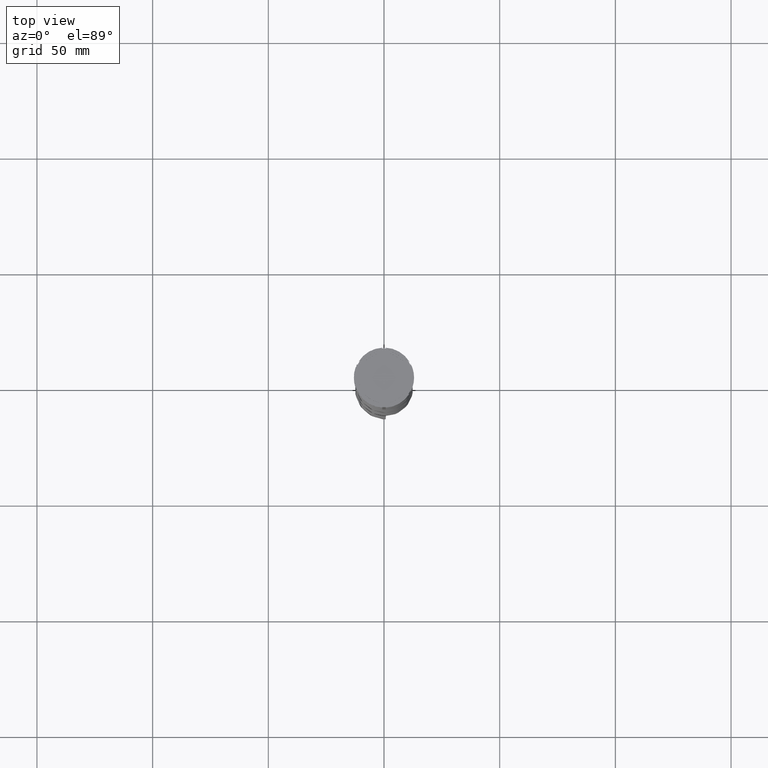
[diagram: clean part render]
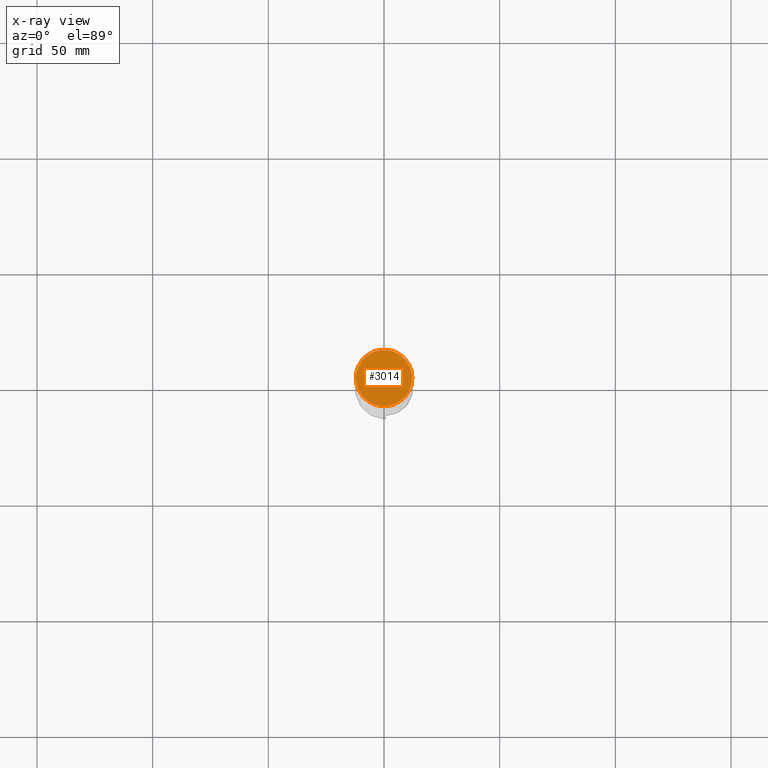
[diagram: x-ray — body ghosted, one internal face saturated and labeled with its STEP entity id]
A machine part, top view, then the same camera in x-ray: the body is ghosted and one INTERNAL B-rep face — a face not visible from any outside direction — is saturated and labeled: STEP entity #3014.
In plain terms, the highlighted planar face has unit normal (0, 0, -1).
Its self-contained STEP definition (entity closure, byte-faithful):
#205 = DIRECTION ( 'NONE',  ( -1.000000000000000000, 0.000000000000000000, 0.000000000000000000 ) ) ;
#494 = EDGE_LOOP ( 'NONE', ( #3509, #3643 ) ) ;
#534 = CARTESIAN_POINT ( 'NONE',  ( 0.000000000000000000, 0.000000000000000000, -12.00000000000000000 ) ) ;
#603 = CIRCLE ( 'NONE', #1839, 12.20000000000000639 ) ;
#1154 = CARTESIAN_POINT ( 'NONE',  ( 0.000000000000000000, 0.000000000000000000, -12.00000000000000000 ) ) ;
#1836 = CARTESIAN_POINT ( 'NONE',  ( 12.20000000000000639, 1.512438796946981880E-15, -12.00000000000000000 ) ) ;
#1839 = AXIS2_PLACEMENT_3D ( 'NONE', #534, #2672, #3303 ) ;
#1936 = EDGE_CURVE ( 'NONE', #4125, #3302, #603, .T. ) ;
#1973 = EDGE_CURVE ( 'NONE', #3302, #4125, #4220, .T. ) ;
#2230 = FACE_OUTER_BOUND ( 'NONE', #494, .T. ) ;
#2546 = DIRECTION ( 'NONE',  ( -1.000000000000000000, 0.000000000000000000, -0.000000000000000000 ) ) ;
#2623 = AXIS2_PLACEMENT_3D ( 'NONE', #3326, #4375, #205 ) ;
#2635 = AXIS2_PLACEMENT_3D ( 'NONE', #1154, #4224, #2546 ) ;
#2672 = DIRECTION ( 'NONE',  ( -0.000000000000000000, -0.000000000000000000, 1.000000000000000000 ) ) ;
#3014 = ADVANCED_FACE ( 'NONE', ( #2230 ), #3265, .F. ) ;
#3036 = CARTESIAN_POINT ( 'NONE',  ( -12.20000000000000639, 0.000000000000000000, -12.00000000000000000 ) ) ;
#3265 = PLANE ( 'NONE',  #2635 ) ;
#3302 = VERTEX_POINT ( 'NONE', #3036 ) ;
#3303 = DIRECTION ( 'NONE',  ( -1.000000000000000000, 0.000000000000000000, 0.000000000000000000 ) ) ;
#3326 = CARTESIAN_POINT ( 'NONE',  ( 0.000000000000000000, 0.000000000000000000, -12.00000000000000000 ) ) ;
#3509 = ORIENTED_EDGE ( 'NONE', *, *, #1973, .T. ) ;
#3643 = ORIENTED_EDGE ( 'NONE', *, *, #1936, .T. ) ;
#4125 = VERTEX_POINT ( 'NONE', #1836 ) ;
#4220 = CIRCLE ( 'NONE', #2623, 12.20000000000000639 ) ;
#4224 = DIRECTION ( 'NONE',  ( 0.000000000000000000, 0.000000000000000000, -1.000000000000000000 ) ) ;
#4375 = DIRECTION ( 'NONE',  ( -0.000000000000000000, -0.000000000000000000, 1.000000000000000000 ) ) ;